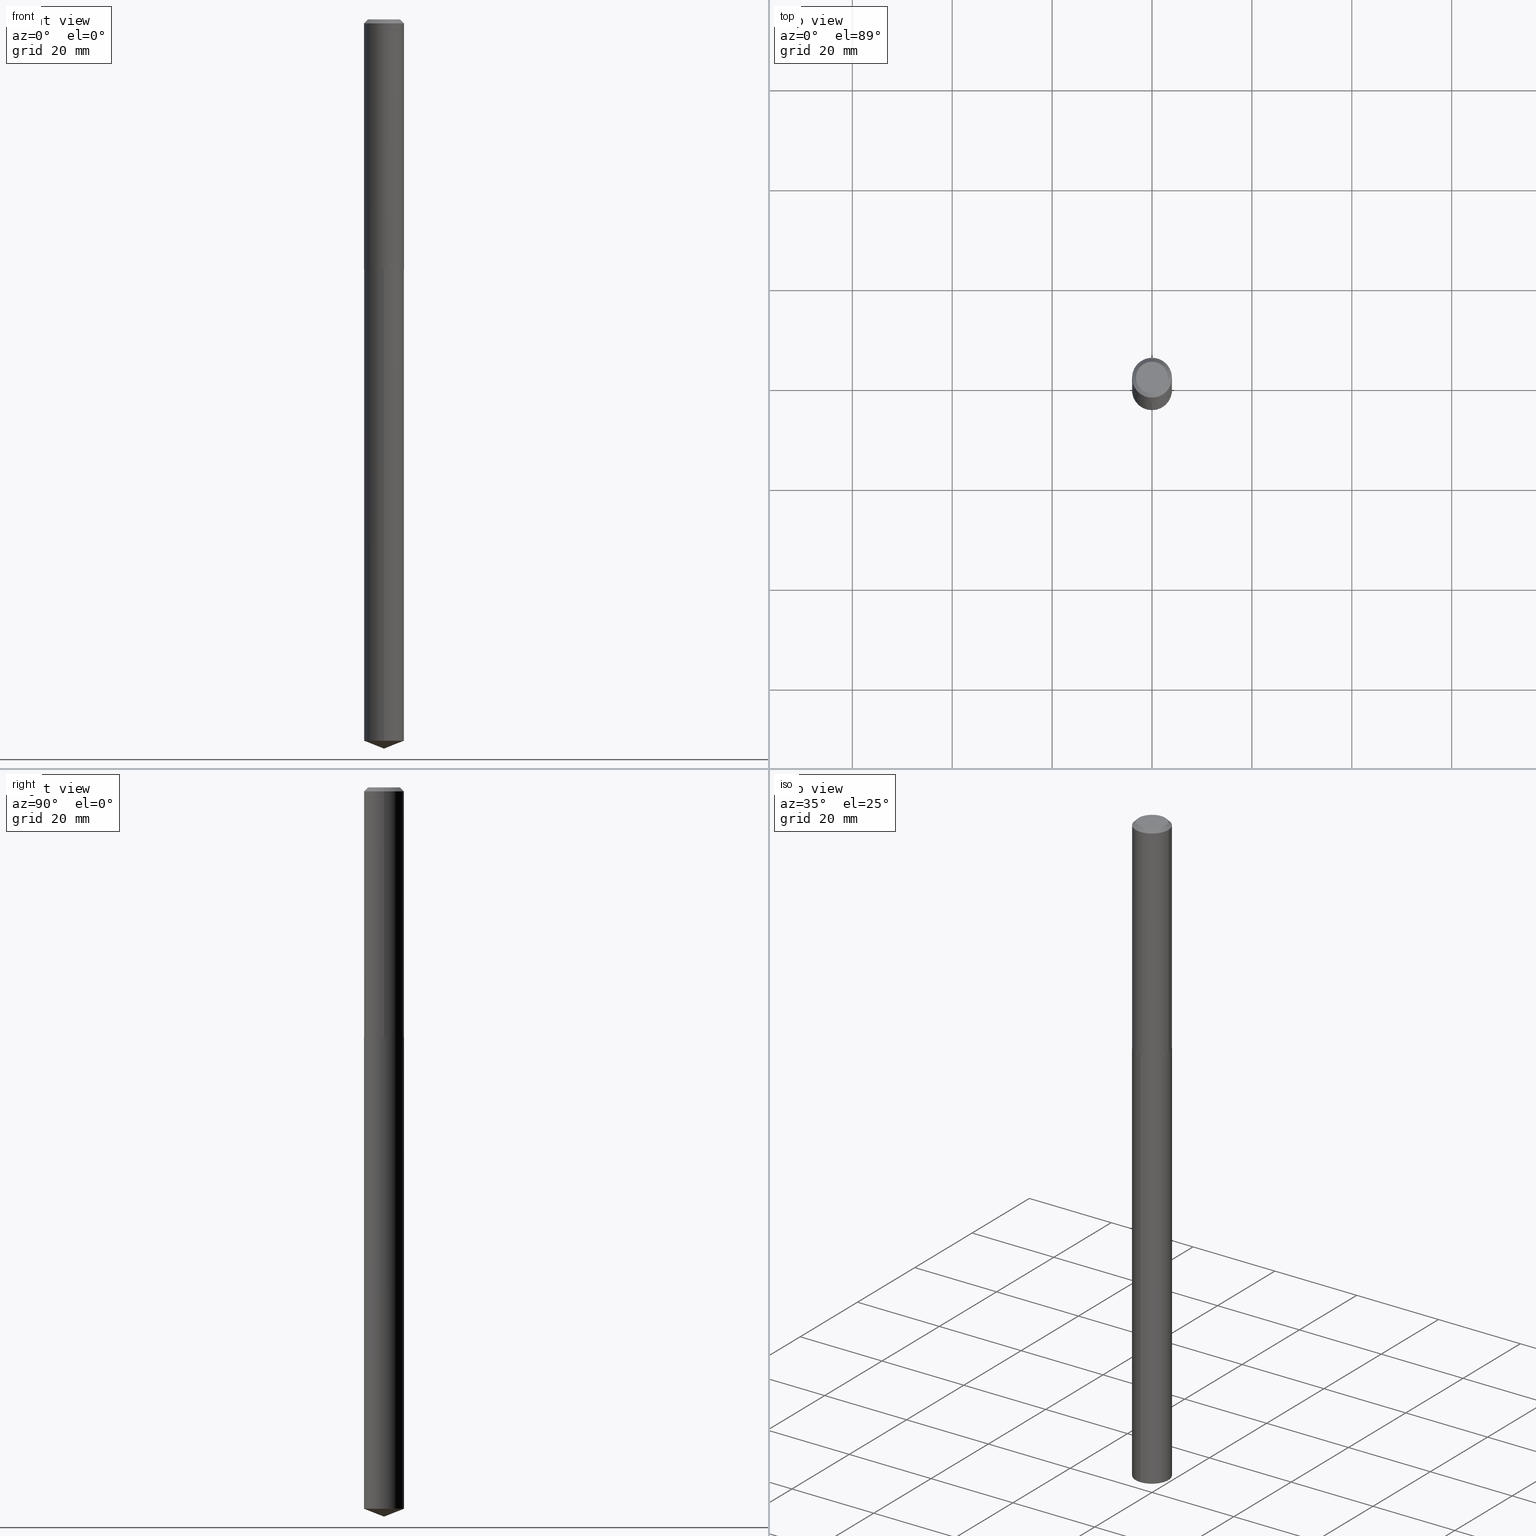
[diagram: canonical four-view strip — front | top / right | iso, engineering-drawing reading convention]
A machine part, canonical four-view strip (front | top / right | iso — engineering-drawing reading convention). The complete STEP part file that produces these views, byte-faithful:
ISO-10303-21;
HEADER;
FILE_DESCRIPTION (( 'STEP AP203' ),
    '1' );
FILE_NAME ('66759.STEP',
    '2024-04-23T12:51:38',
    ( '' ),
    ( '' ),
    'SwSTEP 2.0',
    'SolidWorks 2023',
    '' );
FILE_SCHEMA (( 'CONFIG_CONTROL_DESIGN' ));
ENDSEC;

DATA;
#1 = DATE_AND_TIME ( #185, #293 ) ;
#2 = LINE ( 'NONE', #123, #85 ) ;
#3 = PERSON_AND_ORGANIZATION ( #216, #11 ) ;
#4 = CIRCLE ( 'NONE', #220, 0.1262499999999999734 ) ;
#5 = SECURITY_CLASSIFICATION ( '', '', #346 ) ;
#6 = EDGE_CURVE ( 'NONE', #143, #141, #40, .T. ) ;
#7 = PERSON_AND_ORGANIZATION_ROLE ( 'creator' ) ;
#8 = EDGE_CURVE ( 'NONE', #266, #303, #118, .T. ) ;
#9 = AXIS2_PLACEMENT_3D ( 'NONE', #378, #297, #46 ) ;
#10 = LENGTH_MEASURE_WITH_UNIT ( LENGTH_MEASURE( 0.02539999999999999897 ), #304 );
#11 = ORGANIZATION ( 'UNSPECIFIED', 'UNSPECIFIED', '' ) ;
#12 = CARTESIAN_POINT ( 'NONE',  ( -5.899826025441371921E-47, 8.423387948417036461E-33, 2.412554194320285406E-18 ) ) ;
#13 = DIRECTION ( 'NONE',  ( -1.000000000000000000, 6.982962677686265922E-15, -4.876176775795935793E-29 ) ) ;
#14 = PERSON_AND_ORGANIZATION ( #216, #11 ) ;
#15 = AXIS2_PLACEMENT_3D ( 'NONE', #277, #126, #245 ) ;
#16 = ORIENTED_EDGE ( 'NONE', *, *, #340, .F. ) ;
#17 = ORIENTED_EDGE ( 'NONE', *, *, #252, .T. ) ;
#18 = DIRECTION ( 'NONE',  ( -6.982962677686265922E-15, -1.000000000000000000, 3.498627837350040510E-15 ) ) ;
#19 = EDGE_CURVE ( 'NONE', #76, #291, #131, .T. ) ;
#20 = VERTEX_POINT ( 'NONE', #272 ) ;
#21 = CIRCLE ( 'NONE', #99, 0.1575000000000002232 ) ;
#22 = EDGE_LOOP ( 'NONE', ( #24, #17 ) ) ;
#23 = ORIENTED_EDGE ( 'NONE', *, *, #319, .F. ) ;
#24 = ORIENTED_EDGE ( 'NONE', *, *, #149, .T. ) ;
#25 = EDGE_CURVE ( 'NONE', #291, #76, #374, .T. ) ;
#26 = DIRECTION ( 'NONE',  ( 1.000000000000000000, -6.982962677686265133E-15, 0.000000000000000000 ) ) ;
#27 = CLOSED_SHELL ( 'NONE', ( #89, #190, #273, #261, #150 ) ) ;
#28 = AXIS2_PLACEMENT_3D ( 'NONE', #160, #101, #130 ) ;
#29 = CYLINDRICAL_SURFACE ( 'NONE', #155, 0.1575000000000000844 ) ;
#30 = DIRECTION ( 'NONE',  ( 1.000000000000000000, -6.982962677686267499E-15, 4.876176775795936353E-29 ) ) ;
#31 = ADVANCED_FACE ( 'NONE', ( #87 ), #274, .F. ) ;
#32 = CARTESIAN_POINT ( 'NONE',  ( -1.099816621735447457E-15, -0.1575000000000197631, -5.685959100090645535 ) ) ;
#33 = PERSON_AND_ORGANIZATION ( #216, #11 ) ;
#34 = DIRECTION ( 'NONE',  ( -6.982962677686264344E-15, -1.000000000000000000, 3.469013325287953293E-15 ) ) ;
#35 = DIRECTION ( 'NONE',  ( -0.7071067811868855246, 7.493145998871575317E-15, 0.7071067811862095098 ) ) ;
#36 = DATE_AND_TIME ( #98, #287 ) ;
#37 = CC_DESIGN_DATE_AND_TIME_ASSIGNMENT ( #337, #370, ( #62 ) ) ;
#38 = CARTESIAN_POINT ( 'NONE',  ( 7.642090019328607917E-31, -1.091087918388491006E-16, -0.03125000000000022898 ) ) ;
#39 = DIRECTION ( 'NONE',  ( -2.445255354796806931E-29, 3.491787013380132143E-15, 1.000000000000000000 ) ) ;
#40 = CIRCLE ( 'NONE', #191, 0.1575000000000002232 ) ;
#41 = CALENDAR_DATE ( 2024, 23, 4 ) ;
#42 = PLANE ( 'NONE',  #267 ) ;
#43 = CARTESIAN_POINT ( 'NONE',  ( -1.179965205088274384E-46, 1.684677589683407292E-32, 4.825108388640570813E-18 ) ) ;
#44 = DIRECTION ( 'NONE',  ( 1.000000000000000000, -6.982962677686267499E-15, 4.876176775795936353E-29 ) ) ;
#45 = ORIENTED_EDGE ( 'NONE', *, *, #77, .F. ) ;
#46 = DIRECTION ( 'NONE',  ( -6.982962677686264344E-15, -1.000000000000000000, 3.469013325287953293E-15 ) ) ;
#47 = LOCAL_TIME ( 8, 51, 38.00000000000000000, #248 ) ;
#48 = ORIENTED_EDGE ( 'NONE', *, *, #25, .T. ) ;
#49 = APPLICATION_PROTOCOL_DEFINITION ( 'international standard', 'config_control_design', 1994, #321 ) ;
#50 = ORIENTED_EDGE ( 'NONE', *, *, #340, .T. ) ;
#51 = ORIENTED_EDGE ( 'NONE', *, *, #168, .F. ) ;
#52 = CARTESIAN_POINT ( 'NONE',  ( 4.814149891856057817E-29, -6.873330163646613641E-15, -1.968599999999999239 ) ) ;
#53 = AXIS2_PLACEMENT_3D ( 'NONE', #256, #72, #218 ) ;
#54 = EDGE_LOOP ( 'NONE', ( #148, #302, #145 ) ) ;
#55 = FACE_OUTER_BOUND ( 'NONE', #177, .T. ) ;
#56 = CARTESIAN_POINT ( 'NONE',  ( 4.812927157452967257E-29, -6.871584422977194504E-15, -1.968099999999999961 ) ) ;
#57 = DIRECTION ( 'NONE',  ( -6.982962677686264344E-15, -1.000000000000000000, 3.469013325287953293E-15 ) ) ;
#58 = COORDINATED_UNIVERSAL_TIME_OFFSET ( 5, 0, .BEHIND. ) ;
#59 = CONICAL_SURFACE ( 'NONE', #79, 0.1575000000000000011, 0.7853981633974447263 ) ;
#60 = CARTESIAN_POINT ( 'NONE',  ( 4.812927157452967257E-29, -6.871584422977194504E-15, -1.968099999999999961 ) ) ;
#61 = APPROVAL_PERSON_ORGANIZATION ( #373, #201, #154 ) ;
#62 = PRODUCT_DEFINITION ( 'UNKNOWN', '', #237, #328 ) ;
#63 = DIRECTION ( 'NONE',  ( 2.445468806185136597E-29, -3.491481338843145583E-15, -1.000000000000000000 ) ) ;
#64 = CARTESIAN_POINT ( 'NONE',  ( 4.812927157452967257E-29, -6.871584422977194504E-15, -1.968099999999999961 ) ) ;
#65 = DATE_AND_TIME ( #246, #47 ) ;
#66 = AXIS2_PLACEMENT_3D ( 'NONE', #103, #289, #18 ) ;
#67 = CIRCLE ( 'NONE', #28, 0.1575000000000000011 ) ;
#68 = SHAPE_DEFINITION_REPRESENTATION ( #107, #167 ) ;
#69 = VECTOR ( 'NONE', #322, 39.37007874015748143 ) ;
#70 = APPROVAL_ROLE ( '' ) ;
#71 = AXIS2_PLACEMENT_3D ( 'NONE', #184, #208, #30 ) ;
#72 = DIRECTION ( 'NONE',  ( -2.445468806185136597E-29, 3.491481338843145583E-15, 1.000000000000000000 ) ) ;
#73 = VERTEX_POINT ( 'NONE', #209 ) ;
#74 = DIRECTION ( 'NONE',  ( 2.438088387897960049E-29, -3.491481338843145188E-15, -1.000000000000000000 ) ) ;
#75 = EDGE_CURVE ( 'NONE', #80, #143, #88, .T. ) ;
#76 = VERTEX_POINT ( 'NONE', #313 ) ;
#77 = EDGE_CURVE ( 'NONE', #141, #143, #21, .T. ) ;
#78 = CARTESIAN_POINT ( 'NONE',  ( -1.179965205088274384E-46, 1.684677589683407292E-32, 4.825108388640570813E-18 ) ) ;
#79 = AXIS2_PLACEMENT_3D ( 'NONE', #342, #278, #159 ) ;
#80 = VERTEX_POINT ( 'NONE', #341 ) ;
#81 = DIRECTION ( 'NONE',  ( 2.445255354796806650E-29, -3.491787013380132143E-15, -1.000000000000000000 ) ) ;
#82 = ORIENTED_EDGE ( 'NONE', *, *, #19, .T. ) ;
#83 = ORIENTED_EDGE ( 'NONE', *, *, #25, .F. ) ;
#84 = ORIENTED_EDGE ( 'NONE', *, *, #252, .F. ) ;
#85 = VECTOR ( 'NONE', #317, 39.37007874015748143 ) ;
#86 = DIRECTION ( 'NONE',  ( 1.000000000000000000, -6.982962677686265922E-15, 0.000000000000000000 ) ) ;
#87 = FACE_OUTER_BOUND ( 'NONE', #116, .T. ) ;
#88 = LINE ( 'NONE', #338, #172 ) ;
#89 = ADVANCED_FACE ( 'NONE', ( #239 ), #369, .T. ) ;
#90 = PERSON_AND_ORGANIZATION_ROLE ( 'classification_officer' ) ;
#91 = CIRCLE ( 'NONE', #105, 0.1570000000000003892 ) ;
#92 = VECTOR ( 'NONE', #360, 39.37007874015748143 ) ;
#93 = DIRECTION ( 'NONE',  ( -2.445255354796806931E-29, 3.491787013380132143E-15, 1.000000000000000000 ) ) ;
#94 = VECTOR ( 'NONE', #93, 39.37007874015748143 ) ;
#95 = DIRECTION ( 'NONE',  ( -2.438088387897960049E-29, 3.491481338843145188E-15, 1.000000000000000000 ) ) ;
#96 = DIRECTION ( 'NONE',  ( -1.000000000000000000, 6.982962677686265922E-15, 0.000000000000000000 ) ) ;
#97 = CC_DESIGN_PERSON_AND_ORGANIZATION_ASSIGNMENT ( #3, #243, ( #237 ) ) ;
#98 = CALENDAR_DATE ( 2024, 23, 4 ) ;
#99 = AXIS2_PLACEMENT_3D ( 'NONE', #56, #151, #26 ) ;
#100 = CONICAL_SURFACE ( 'NONE', #387, 0.1575000000000000011, 0.7853981633974447263 ) ;
#101 = DIRECTION ( 'NONE',  ( -2.445255354796806931E-29, 3.491787013380132143E-15, 1.000000000000000000 ) ) ;
#102 = ADVANCED_FACE ( 'NONE', ( #179 ), #29, .T. ) ;
#103 = CARTESIAN_POINT ( 'NONE',  ( -8.221414787836689719E-28, 1.174017396586196474E-13, 33.62207874015748388 ) ) ;
#104 = DIRECTION ( 'NONE',  ( -2.445468806185136597E-29, 3.491481338843145583E-15, 1.000000000000000000 ) ) ;
#105 = AXIS2_PLACEMENT_3D ( 'NONE', #52, #334, #86 ) ;
#106 = AXIS2_PLACEMENT_3D ( 'NONE', #38, #352, #318 ) ;
#107 = PRODUCT_DEFINITION_SHAPE ( 'NONE', 'NONE',  #62 ) ;
#108 = ORIENTED_EDGE ( 'NONE', *, *, #6, .F. ) ;
#109 = CARTESIAN_POINT ( 'NONE',  ( -0.1575000000000000844, 1.119104808822158392E-15, -7.747322767151481189E-30 ) ) ;
#110 = APPROVAL_STATUS ( 'not_yet_approved' ) ;
#111 = ORIENTED_EDGE ( 'NONE', *, *, #242, .T. ) ;
#112 = VERTEX_POINT ( 'NONE', #316 ) ;
#113 = CARTESIAN_POINT ( 'NONE',  ( 1.405532777937204643E-28, -2.007079175290900127E-14, -5.748000000000000220 ) ) ;
#114 = VECTOR ( 'NONE', #137, 39.37007874015748143 ) ;
#115 = VERTEX_POINT ( 'NONE', #215 ) ;
#116 = EDGE_LOOP ( 'NONE', ( #388, #332 ) ) ;
#117 = AXIS2_PLACEMENT_3D ( 'NONE', #372, #95, #205 ) ;
#118 = LINE ( 'NONE', #343, #249 ) ;
#119 = ADVANCED_FACE ( 'NONE', ( #124 ), #59, .T. ) ;
#120 = DIRECTION ( 'NONE',  ( -6.982962677686264344E-15, -1.000000000000000000, 6.938026650575906587E-15 ) ) ;
#121 = DIRECTION ( 'NONE',  ( -2.445255354796806931E-29, 3.491787013380132143E-15, 1.000000000000000000 ) ) ;
#122 = CARTESIAN_POINT ( 'NONE',  ( 4.814149891856059498E-29, -6.873330163646616008E-15, -1.968599999999999905 ) ) ;
#123 = CARTESIAN_POINT ( 'NONE',  ( 1.405617554950123456E-28, -2.006958825112197784E-14, -5.748000000000000220 ) ) ;
#124 = FACE_OUTER_BOUND ( 'NONE', #390, .T. ) ;
#125 = DIRECTION ( 'NONE',  ( 1.000000000000000000, -6.982962677686265133E-15, 0.000000000000000000 ) ) ;
#126 = DIRECTION ( 'NONE',  ( -2.445468806185136597E-29, 3.491481338843145583E-15, 1.000000000000000000 ) ) ;
#127 = APPROVAL_ROLE ( '' ) ;
#128 = CONICAL_SURFACE ( 'NONE', #188, 0.1575000000000002232, 0.7853981633979263410 ) ;
#129 = EDGE_CURVE ( 'NONE', #20, #141, #210, .T. ) ;
#130 = DIRECTION ( 'NONE',  ( -6.982962677686264344E-15, -1.000000000000000000, 3.469013325287953293E-15 ) ) ;
#131 = CIRCLE ( 'NONE', #335, 0.1575000000000000011 ) ;
#132 = PERSON_AND_ORGANIZATION ( #216, #11 ) ;
#133 =( CONVERSION_BASED_UNIT ( 'INCH', #10 ) LENGTH_UNIT ( ) NAMED_UNIT ( #296 ) );
#134 = CC_DESIGN_PERSON_AND_ORGANIZATION_ASSIGNMENT ( #386, #240, ( #62 ) ) ;
#135 = ADVANCED_FACE ( 'NONE', ( #288 ), #200, .F. ) ;
#136 = CARTESIAN_POINT ( 'NONE',  ( 4.814149891856059498E-29, -6.873330163646616008E-15, -1.968599999999999905 ) ) ;
#137 = DIRECTION ( 'NONE',  ( -2.445255354796806931E-29, 3.491787013380132143E-15, 1.000000000000000000 ) ) ;
#138 = CARTESIAN_POINT ( 'NONE',  ( 0.1575000000000000011, -1.189637226487865274E-15, -0.03125000000000022898 ) ) ;
#139 = AXIS2_PLACEMENT_3D ( 'NONE', #307, #152, #120 ) ;
#140 = EDGE_CURVE ( 'NONE', #112, #356, #187, .T. ) ;
#141 = VERTEX_POINT ( 'NONE', #171 ) ;
#142 = UNCERTAINTY_MEASURE_WITH_UNIT (LENGTH_MEASURE( 1.000000000000000082E-05 ), #133, 'distance_accuracy_value', 'NONE');
#143 = VERTEX_POINT ( 'NONE', #192 ) ;
#144 = ORIENTED_EDGE ( 'NONE', *, *, #186, .T. ) ;
#145 = ORIENTED_EDGE ( 'NONE', *, *, #19, .F. ) ;
#146 = ORIENTED_EDGE ( 'NONE', *, *, #129, .F. ) ;
#147 = MANIFOLD_SOLID_BREP ( 'Body-Move/Copy2[1]', #27 ) ;
#148 = ORIENTED_EDGE ( 'NONE', *, *, #279, .F. ) ;
#149 = EDGE_CURVE ( 'NONE', #266, #364, #4, .T. ) ;
#150 = ADVANCED_FACE ( 'NONE', ( #382 ), #42, .F. ) ;
#151 = DIRECTION ( 'NONE',  ( -2.445468806185136597E-29, 3.491481338843145583E-15, 1.000000000000000000 ) ) ;
#152 = DIRECTION ( 'NONE',  ( -2.445255354796806931E-29, 3.491787013380132143E-15, 1.000000000000000000 ) ) ;
#153 = CARTESIAN_POINT ( 'NONE',  ( 0.1262499999999999734, -1.027887549353260543E-15, 4.825108388647246856E-18 ) ) ;
#154 = APPROVAL_ROLE ( '' ) ;
#155 = AXIS2_PLACEMENT_3D ( 'NONE', #339, #217, #44 ) ;
#156 = CARTESIAN_POINT ( 'NONE',  ( -0.1575000000000000011, -2.371241798585862621E-15, -0.03125000000000022898 ) ) ;
#157 = LOCAL_TIME ( 8, 51, 38.00000000000000000, #336 ) ;
#158 = LINE ( 'NONE', #345, #94 ) ;
#159 = DIRECTION ( 'NONE',  ( -1.000000000000000000, 6.982962677686265922E-15, 0.000000000000000000 ) ) ;
#160 = CARTESIAN_POINT ( 'NONE',  ( 4.814149891856059498E-29, -6.873330163646616008E-15, -1.968599999999999905 ) ) ;
#161 = FACE_OUTER_BOUND ( 'NONE', #54, .T. ) ;
#162 = CC_DESIGN_PERSON_AND_ORGANIZATION_ASSIGNMENT ( #14, #258, ( #227 ) ) ;
#163 = CONICAL_SURFACE ( 'NONE', #268, 0.1575000000000002232, 0.7853981633979263410 ) ;
#164 = CIRCLE ( 'NONE', #106, 0.1575000000000000011 ) ;
#165 = CARTESIAN_POINT ( 'NONE',  ( 0.000000000000000000, 0.000000000000000000, 0.000000000000000000 ) ) ;
#166 = LINE ( 'NONE', #113, #384 ) ;
#167 = ADVANCED_BREP_SHAPE_REPRESENTATION ( '66759', ( #147, #286, #271 ), #180 ) ;
#168 = EDGE_CURVE ( 'NONE', #76, #356, #253, .T. ) ;
#169 = LINE ( 'NONE', #138, #92 ) ;
#170 = EDGE_LOOP ( 'NONE', ( #51, #82, #295, #16 ) ) ;
#171 = CARTESIAN_POINT ( 'NONE',  ( 0.1575000000000002232, -7.971401044712782773E-15, -1.968099999999999961 ) ) ;
#172 = VECTOR ( 'NONE', #35, 39.37007874015748143 ) ;
#173 = ORIENTED_EDGE ( 'NONE', *, *, #8, .F. ) ;
#174 = DIRECTION ( 'NONE',  ( -2.445468806185136597E-29, 3.491481338843145583E-15, 1.000000000000000000 ) ) ;
#175 = EDGE_LOOP ( 'NONE', ( #48, #379, #199, #202 ) ) ;
#176 = APPROVAL ( #110, 'UNSPECIFIED' ) ;
#177 = EDGE_LOOP ( 'NONE', ( #235, #111, #23, #385 ) ) ;
#178 = ORIENTED_EDGE ( 'NONE', *, *, #75, .T. ) ;
#179 = FACE_OUTER_BOUND ( 'NONE', #263, .T. ) ;
#180 =( GEOMETRIC_REPRESENTATION_CONTEXT ( 3 ) GLOBAL_UNCERTAINTY_ASSIGNED_CONTEXT ( ( #142 ) ) GLOBAL_UNIT_ASSIGNED_CONTEXT ( ( #133, #353, #193 ) ) REPRESENTATION_CONTEXT ( 'NONE', 'WORKASPACE' ) );
#181 = DATE_TIME_ROLE ( 'classification_date' ) ;
#182 = CARTESIAN_POINT ( 'NONE',  ( -0.1262499999999999734, 9.361534339773144209E-16, 4.825108388634215244E-18 ) ) ;
#183 = DIRECTION ( 'NONE',  ( -2.445255354796806931E-29, 3.491787013380132143E-15, 1.000000000000000000 ) ) ;
#184 = CARTESIAN_POINT ( 'NONE',  ( 0.000000000000000000, 0.000000000000000000, 0.000000000000000000 ) ) ;
#185 = CALENDAR_DATE ( 2024, 23, 4 ) ;
#186 = EDGE_CURVE ( 'NONE', #141, #115, #198, .T. ) ;
#187 = CIRCLE ( 'NONE', #9, 0.1575000000000000011 ) ;
#188 = AXIS2_PLACEMENT_3D ( 'NONE', #60, #309, #276 ) ;
#189 = EDGE_CURVE ( 'NONE', #73, #291, #166, .T. ) ;
#190 = ADVANCED_FACE ( 'NONE', ( #331 ), #236, .T. ) ;
#191 = AXIS2_PLACEMENT_3D ( 'NONE', #64, #368, #125 ) ;
#192 = CARTESIAN_POINT ( 'NONE',  ( -0.1575000000000002232, -5.752479614155035323E-15, -1.968099999999999961 ) ) ;
#193 =( NAMED_UNIT ( * ) SI_UNIT ( $, .STERADIAN. ) SOLID_ANGLE_UNIT ( ) );
#194 = EDGE_CURVE ( 'NONE', #80, #20, #207, .T. ) ;
#195 = DIRECTION ( 'NONE',  ( -2.445468806185136877E-29, 3.491481338843145188E-15, 1.000000000000000000 ) ) ;
#196 = ORIENTED_EDGE ( 'NONE', *, *, #366, .T. ) ;
#197 = ORIENTED_EDGE ( 'NONE', *, *, #8, .T. ) ;
#198 = LINE ( 'NONE', #294, #232 ) ;
#199 = ORIENTED_EDGE ( 'NONE', *, *, #140, .F. ) ;
#200 = PLANE ( 'NONE',  #300 ) ;
#201 = APPROVAL ( #211, 'UNSPECIFIED' ) ;
#202 = ORIENTED_EDGE ( 'NONE', *, *, #262, .F. ) ;
#203 = EDGE_LOOP ( 'NONE', ( #333, #325, #83 ) ) ;
#204 = AXIS2_PLACEMENT_3D ( 'NONE', #122, #206, #57 ) ;
#205 = DIRECTION ( 'NONE',  ( 1.000000000000000000, -6.982962677686265922E-15, 4.876176775795935793E-29 ) ) ;
#206 = DIRECTION ( 'NONE',  ( -2.445255354796806931E-29, 3.491787013380132143E-15, 1.000000000000000000 ) ) ;
#207 = CIRCLE ( 'NONE', #53, 0.1570000000000003892 ) ;
#208 = DIRECTION ( 'NONE',  ( -2.445468806185136597E-29, 3.491481338843145583E-15, 1.000000000000000000 ) ) ;
#209 = CARTESIAN_POINT ( 'NONE',  ( 1.405532777937204643E-28, -2.007079175290900127E-14, -5.748000000000000220 ) ) ;
#210 = LINE ( 'NONE', #290, #69 ) ;
#211 = APPROVAL_STATUS ( 'not_yet_approved' ) ;
#212 = ADVANCED_FACE ( 'NONE', ( #222 ), #163, .T. ) ;
#213 = CONICAL_SURFACE ( 'NONE', #362, 99.94676754583893796, 1.195550537616115960 ) ;
#214 = APPROVAL_DATE_TIME ( #350, #176 ) ;
#215 = CARTESIAN_POINT ( 'NONE',  ( 0.1575000000000000011, -1.208925413574435989E-15, -0.03125000000000022898 ) ) ;
#216 = PERSON ( 'UNSPECIFIED', 'UNSPECIFIED', 'UNSPECIFIED', ('UNSPECIFIED'), ('UNSPECIFIED'), ('UNSPECIFIED') ) ;
#217 = DIRECTION ( 'NONE',  ( -2.445468806185136597E-29, 3.491481338843145583E-15, 1.000000000000000000 ) ) ;
#218 = DIRECTION ( 'NONE',  ( 1.000000000000000000, -6.982962677686265922E-15, 0.000000000000000000 ) ) ;
#219 = DIRECTION ( 'NONE',  ( 1.000000000000000000, 0.000000000000000000, 0.000000000000000000 ) ) ;
#220 = AXIS2_PLACEMENT_3D ( 'NONE', #43, #104, #264 ) ;
#221 = CC_DESIGN_SECURITY_CLASSIFICATION ( #5, ( #237 ) ) ;
#222 = FACE_OUTER_BOUND ( 'NONE', #229, .T. ) ;
#223 = EDGE_LOOP ( 'NONE', ( #226, #361, #197, #196 ) ) ;
#224 = CARTESIAN_POINT ( 'NONE',  ( 4.812927157452967257E-29, -6.871584422977194504E-15, -1.968099999999999961 ) ) ;
#225 = COORDINATED_UNIVERSAL_TIME_OFFSET ( 5, 0, .BEHIND. ) ;
#226 = ORIENTED_EDGE ( 'NONE', *, *, #230, .F. ) ;
#227 = PRODUCT ( '66759', '66759', '', ( #323 ) ) ;
#228 = DIRECTION ( 'NONE',  ( -2.445468806185136597E-29, 3.491481338843145583E-15, 1.000000000000000000 ) ) ;
#229 = EDGE_LOOP ( 'NONE', ( #359, #178, #45, #146 ) ) ;
#230 = EDGE_CURVE ( 'NONE', #364, #115, #169, .T. ) ;
#231 = DIRECTION ( 'NONE',  ( 1.000000000000000000, -6.982962677686267499E-15, 4.876009584780190244E-29 ) ) ;
#232 = VECTOR ( 'NONE', #195, 39.37007874015748143 ) ;
#233 = CC_DESIGN_APPROVAL ( #375, ( #237 ) ) ;
#234 = ORIENTED_EDGE ( 'NONE', *, *, #230, .T. ) ;
#235 = ORIENTED_EDGE ( 'NONE', *, *, #77, .T. ) ;
#236 = CONICAL_SURFACE ( 'NONE', #66, 99.94676754583893796, 1.195550537616115960 ) ;
#237 = PRODUCT_DEFINITION_FORMATION_WITH_SPECIFIED_SOURCE ( 'ANY', '', #227, .NOT_KNOWN. ) ;
#238 = CARTESIAN_POINT ( 'NONE',  ( 1.390404213705535400E-28, -1.985355639341359418E-14, -5.685959100090646423 ) ) ;
#239 = FACE_OUTER_BOUND ( 'NONE', #175, .T. ) ;
#240 = PERSON_AND_ORGANIZATION_ROLE ( 'creator' ) ;
#241 = FACE_OUTER_BOUND ( 'NONE', #299, .T. ) ;
#242 = EDGE_CURVE ( 'NONE', #143, #303, #257, .T. ) ;
#243 = PERSON_AND_ORGANIZATION_ROLE ( 'design_supplier' ) ;
#244 = DIRECTION ( 'NONE',  ( -6.982962677686265922E-15, -1.000000000000000000, 3.498627837350040510E-15 ) ) ;
#245 = DIRECTION ( 'NONE',  ( 1.000000000000000000, -6.982962677686265922E-15, 0.000000000000000000 ) ) ;
#246 = CALENDAR_DATE ( 2024, 23, 4 ) ;
#247 = CYLINDRICAL_SURFACE ( 'NONE', #301, 0.1575000000000000011 ) ;
#248 = COORDINATED_UNIVERSAL_TIME_OFFSET ( 5, 0, .BEHIND. ) ;
#249 = VECTOR ( 'NONE', #305, 39.37007874015748143 ) ;
#250 = CARTESIAN_POINT ( 'NONE',  ( 1.119104808822297232E-15, 0.1574999999999931177, -1.968600000000000350 ) ) ;
#251 = APPROVAL_PERSON_ORGANIZATION ( #132, #375, #127 ) ;
#252 = EDGE_CURVE ( 'NONE', #364, #266, #292, .T. ) ;
#253 = LINE ( 'NONE', #380, #114 ) ;
#254 = DIRECTION ( 'NONE',  ( 0.000000000000000000, 0.000000000000000000, 1.000000000000000000 ) ) ;
#255 = EDGE_CURVE ( 'NONE', #20, #80, #91, .T. ) ;
#256 = CARTESIAN_POINT ( 'NONE',  ( 4.814149891856057817E-29, -6.873330163646613641E-15, -1.968599999999999239 ) ) ;
#257 = LINE ( 'NONE', #109, #270 ) ;
#258 = PERSON_AND_ORGANIZATION_ROLE ( 'design_owner' ) ;
#259 = ORIENTED_EDGE ( 'NONE', *, *, #319, .T. ) ;
#260 = ADVANCED_FACE ( 'NONE', ( #55 ), #351, .T. ) ;
#261 = ADVANCED_FACE ( 'NONE', ( #312 ), #247, .T. ) ;
#262 = EDGE_CURVE ( 'NONE', #291, #112, #158, .T. ) ;
#263 = EDGE_LOOP ( 'NONE', ( #298, #269, #144, #381 ) ) ;
#264 = DIRECTION ( 'NONE',  ( 1.000000000000000000, -6.982962677686267499E-15, 4.876009584780190244E-29 ) ) ;
#265 = APPLICATION_CONTEXT ( 'configuration controlled 3d designs of mechanical parts and assemblies' ) ;
#266 = VERTEX_POINT ( 'NONE', #182 ) ;
#267 = AXIS2_PLACEMENT_3D ( 'NONE', #136, #81, #354 ) ;
#268 = AXIS2_PLACEMENT_3D ( 'NONE', #224, #228, #329 ) ;
#269 = ORIENTED_EDGE ( 'NONE', *, *, #6, .T. ) ;
#270 = VECTOR ( 'NONE', #357, 39.37007874015748143 ) ;
#271 = AXIS2_PLACEMENT_3D ( 'NONE', #165, #254, #219 ) ;
#272 = CARTESIAN_POINT ( 'NONE',  ( 0.1570000000000003892, -7.969655304043360481E-15, -1.968599999999999239 ) ) ;
#273 = ADVANCED_FACE ( 'NONE', ( #161 ), #213, .T. ) ;
#274 = PLANE ( 'NONE',  #117 ) ;
#275 = ADVANCED_FACE ( 'NONE', ( #241 ), #128, .T. ) ;
#276 = DIRECTION ( 'NONE',  ( 1.000000000000000000, -6.982962677686265133E-15, 0.000000000000000000 ) ) ;
#277 = CARTESIAN_POINT ( 'NONE',  ( 7.642090019328607917E-31, -1.091087918388491006E-16, -0.03125000000000022898 ) ) ;
#278 = DIRECTION ( 'NONE',  ( 2.445468806185136597E-29, -3.491481338843145583E-15, -1.000000000000000000 ) ) ;
#279 = EDGE_CURVE ( 'NONE', #73, #76, #2, .T. ) ;
#280 = CLOSED_SHELL ( 'NONE', ( #119, #260, #212, #31, #275, #102, #348, #135 ) ) ;
#281 = LOCAL_TIME ( 8, 51, 38.00000000000000000, #225 ) ;
#282 = APPROVAL_DATE_TIME ( #36, #201 ) ;
#283 = PRODUCT_RELATED_PRODUCT_CATEGORY ( 'detail', '', ( #227 ) ) ;
#284 = CARTESIAN_POINT ( 'NONE',  ( 7.642090019328607917E-31, -1.091087918388491006E-16, -0.03125000000000022898 ) ) ;
#285 = APPROVAL_STATUS ( 'not_yet_approved' ) ;
#286 = MANIFOLD_SOLID_BREP ( 'Body-Move/Copy2[2]', #280 ) ;
#287 = LOCAL_TIME ( 8, 51, 38.00000000000000000, #314 ) ;
#288 = FACE_OUTER_BOUND ( 'NONE', #22, .T. ) ;
#289 = DIRECTION ( 'NONE',  ( -2.445255354796806931E-29, 3.491787013380132143E-15, 1.000000000000000000 ) ) ;
#290 = CARTESIAN_POINT ( 'NONE',  ( 0.1575000000000002232, -7.971401044712782773E-15, -1.968099999999999961 ) ) ;
#291 = VERTEX_POINT ( 'NONE', #32 ) ;
#292 = CIRCLE ( 'NONE', #349, 0.1262499999999999734 ) ;
#293 = LOCAL_TIME ( 8, 51, 38.00000000000000000, #58 ) ;
#294 = CARTESIAN_POINT ( 'NONE',  ( 0.1575000000000000844, -1.099816621735587677E-15, 7.679978421878603638E-30 ) ) ;
#295 = ORIENTED_EDGE ( 'NONE', *, *, #262, .T. ) ;
#296 = DIMENSIONAL_EXPONENTS ( 1.000000000000000000, 0.000000000000000000, 0.000000000000000000, 0.000000000000000000, 0.000000000000000000, 0.000000000000000000, 0.000000000000000000 ) ;
#297 = DIRECTION ( 'NONE',  ( -2.445255354796806931E-29, 3.491787013380132143E-15, 1.000000000000000000 ) ) ;
#298 = ORIENTED_EDGE ( 'NONE', *, *, #242, .F. ) ;
#299 = EDGE_LOOP ( 'NONE', ( #330, #326, #365, #108 ) ) ;
#300 = AXIS2_PLACEMENT_3D ( 'NONE', #12, #74, #13 ) ;
#301 = AXIS2_PLACEMENT_3D ( 'NONE', #347, #39, #34 ) ;
#302 = ORIENTED_EDGE ( 'NONE', *, *, #189, .T. ) ;
#303 = VERTEX_POINT ( 'NONE', #156 ) ;
#304 =( LENGTH_UNIT ( ) NAMED_UNIT ( * ) SI_UNIT ( $, .METRE. ) );
#305 = DIRECTION ( 'NONE',  ( -0.7071067811865450192, 2.468850131082230634E-15, -0.7071067811865500152 ) ) ;
#306 = CC_DESIGN_DATE_AND_TIME_ASSIGNMENT ( #1, #181, ( #5 ) ) ;
#307 = CARTESIAN_POINT ( 'NONE',  ( 1.390404213705535400E-28, -1.985355639341359418E-14, -5.685959100090646423 ) ) ;
#308 = APPROVAL_DATE_TIME ( #65, #375 ) ;
#309 = DIRECTION ( 'NONE',  ( -2.445468806185136597E-29, 3.491481338843145583E-15, 1.000000000000000000 ) ) ;
#310 = DIRECTION ( 'NONE',  ( -6.982962677686264344E-15, -1.000000000000000000, 6.938026650575906587E-15 ) ) ;
#311 = PERSON_AND_ORGANIZATION ( #216, #11 ) ;
#312 = FACE_OUTER_BOUND ( 'NONE', #170, .T. ) ;
#313 = CARTESIAN_POINT ( 'NONE',  ( 1.119104808822296246E-15, 0.1574999999999801281, -5.685959100090647311 ) ) ;
#314 = COORDINATED_UNIVERSAL_TIME_OFFSET ( 5, 0, .BEHIND. ) ;
#315 = CC_DESIGN_APPROVAL ( #176, ( #62 ) ) ;
#316 = CARTESIAN_POINT ( 'NONE',  ( -1.099816621735538768E-15, -0.1575000000000068567, -1.968599999999999239 ) ) ;
#317 = DIRECTION ( 'NONE',  ( 6.611014441532057911E-15, 0.9304175679820259059, 0.3665012267242938049 ) ) ;
#318 = DIRECTION ( 'NONE',  ( 1.000000000000000000, -6.982962677686265922E-15, 0.000000000000000000 ) ) ;
#319 = EDGE_CURVE ( 'NONE', #115, #303, #164, .T. ) ;
#320 = CIRCLE ( 'NONE', #15, 0.1575000000000000011 ) ;
#321 = APPLICATION_CONTEXT ( 'configuration controlled 3d designs of mechanical parts and assemblies' ) ;
#322 = DIRECTION ( 'NONE',  ( 0.7071067811868855246, -2.468850131085797074E-15, 0.7071067811862095098 ) ) ;
#323 = MECHANICAL_CONTEXT ( 'NONE', #265, 'mechanical' ) ;
#324 = DIRECTION ( 'NONE',  ( -6.497071151882111159E-15, -0.9304175679820232414, 0.3665012267243003552 ) ) ;
#325 = ORIENTED_EDGE ( 'NONE', *, *, #279, .T. ) ;
#326 = ORIENTED_EDGE ( 'NONE', *, *, #194, .T. ) ;
#327 = CC_DESIGN_APPROVAL ( #201, ( #5 ) ) ;
#328 = DESIGN_CONTEXT ( 'detailed design', #321, 'design' ) ;
#329 = DIRECTION ( 'NONE',  ( 1.000000000000000000, -6.982962677686265133E-15, 0.000000000000000000 ) ) ;
#330 = ORIENTED_EDGE ( 'NONE', *, *, #75, .F. ) ;
#331 = FACE_OUTER_BOUND ( 'NONE', #203, .T. ) ;
#332 = ORIENTED_EDGE ( 'NONE', *, *, #194, .F. ) ;
#333 = ORIENTED_EDGE ( 'NONE', *, *, #189, .F. ) ;
#334 = DIRECTION ( 'NONE',  ( -2.445468806185136597E-29, 3.491481338843145583E-15, 1.000000000000000000 ) ) ;
#335 = AXIS2_PLACEMENT_3D ( 'NONE', #238, #183, #310 ) ;
#336 = COORDINATED_UNIVERSAL_TIME_OFFSET ( 5, 0, .BEHIND. ) ;
#337 = DATE_AND_TIME ( #41, #157 ) ;
#338 = CARTESIAN_POINT ( 'NONE',  ( -0.1575000000000002232, -5.752479614155035323E-15, -1.968099999999999961 ) ) ;
#339 = CARTESIAN_POINT ( 'NONE',  ( 0.000000000000000000, 0.000000000000000000, 0.000000000000000000 ) ) ;
#340 = EDGE_CURVE ( 'NONE', #356, #112, #67, .T. ) ;
#341 = CARTESIAN_POINT ( 'NONE',  ( -0.1570000000000003892, -5.755128841329144947E-15, -1.968599999999999239 ) ) ;
#342 = CARTESIAN_POINT ( 'NONE',  ( 7.642090019328607917E-31, -1.091087918388491006E-16, -0.03125000000000022898 ) ) ;
#343 = CARTESIAN_POINT ( 'NONE',  ( -0.1575000000000000011, 9.907078298967379852E-16, -0.03125000000000022898 ) ) ;
#344 = FACE_OUTER_BOUND ( 'NONE', #223, .T. ) ;
#345 = CARTESIAN_POINT ( 'NONE',  ( -1.099816621735538768E-15, -0.1575000000000068567, -1.968599999999999239 ) ) ;
#346 = SECURITY_CLASSIFICATION_LEVEL ( 'unclassified' ) ;
#347 = CARTESIAN_POINT ( 'NONE',  ( 4.814149891856059498E-29, -6.873330163646616008E-15, -1.968599999999999905 ) ) ;
#348 = ADVANCED_FACE ( 'NONE', ( #344 ), #100, .T. ) ;
#349 = AXIS2_PLACEMENT_3D ( 'NONE', #78, #174, #231 ) ;
#350 = DATE_AND_TIME ( #358, #281 ) ;
#351 = CYLINDRICAL_SURFACE ( 'NONE', #71, 0.1575000000000000844 ) ;
#352 = DIRECTION ( 'NONE',  ( -2.445468806185136597E-29, 3.491481338843145583E-15, 1.000000000000000000 ) ) ;
#353 =( NAMED_UNIT ( * ) PLANE_ANGLE_UNIT ( ) SI_UNIT ( $, .RADIAN. ) );
#354 = DIRECTION ( 'NONE',  ( 6.982962677686265922E-15, 1.000000000000000000, -3.491787013380132143E-15 ) ) ;
#355 = CC_DESIGN_PERSON_AND_ORGANIZATION_ASSIGNMENT ( #311, #7, ( #237 ) ) ;
#356 = VERTEX_POINT ( 'NONE', #250 ) ;
#357 = DIRECTION ( 'NONE',  ( -2.445468806185136877E-29, 3.491481338843145188E-15, 1.000000000000000000 ) ) ;
#358 = CALENDAR_DATE ( 2024, 23, 4 ) ;
#359 = ORIENTED_EDGE ( 'NONE', *, *, #255, .T. ) ;
#360 = DIRECTION ( 'NONE',  ( 0.7071067811865450192, -7.319954787623246579E-15, -0.7071067811865500152 ) ) ;
#361 = ORIENTED_EDGE ( 'NONE', *, *, #149, .F. ) ;
#362 = AXIS2_PLACEMENT_3D ( 'NONE', #389, #121, #244 ) ;
#363 = PERSON_AND_ORGANIZATION ( #216, #11 ) ;
#364 = VERTEX_POINT ( 'NONE', #153 ) ;
#365 = ORIENTED_EDGE ( 'NONE', *, *, #129, .T. ) ;
#366 = EDGE_CURVE ( 'NONE', #303, #115, #320, .T. ) ;
#367 = CC_DESIGN_PERSON_AND_ORGANIZATION_ASSIGNMENT ( #33, #90, ( #5 ) ) ;
#368 = DIRECTION ( 'NONE',  ( -2.445468806185136597E-29, 3.491481338843145583E-15, 1.000000000000000000 ) ) ;
#369 = CYLINDRICAL_SURFACE ( 'NONE', #204, 0.1575000000000000011 ) ;
#370 = DATE_TIME_ROLE ( 'creation_date' ) ;
#371 = APPROVAL_PERSON_ORGANIZATION ( #363, #176, #70 ) ;
#372 = CARTESIAN_POINT ( 'NONE',  ( 4.814149891856058377E-29, -6.873330163646614430E-15, -1.968599999999999683 ) ) ;
#373 = PERSON_AND_ORGANIZATION ( #216, #11 ) ;
#374 = CIRCLE ( 'NONE', #139, 0.1575000000000000011 ) ;
#375 = APPROVAL ( #285, 'UNSPECIFIED' ) ;
#376 = APPLICATION_PROTOCOL_DEFINITION ( 'international standard', 'config_control_design', 1994, #265 ) ;
#377 = EDGE_LOOP ( 'NONE', ( #383, #50 ) ) ;
#378 = CARTESIAN_POINT ( 'NONE',  ( 4.814149891856059498E-29, -6.873330163646616008E-15, -1.968599999999999905 ) ) ;
#379 = ORIENTED_EDGE ( 'NONE', *, *, #168, .T. ) ;
#380 = CARTESIAN_POINT ( 'NONE',  ( 1.119104808822205527E-15, 0.1574999999999931177, -1.968600000000000350 ) ) ;
#381 = ORIENTED_EDGE ( 'NONE', *, *, #366, .F. ) ;
#382 = FACE_OUTER_BOUND ( 'NONE', #377, .T. ) ;
#383 = ORIENTED_EDGE ( 'NONE', *, *, #140, .T. ) ;
#384 = VECTOR ( 'NONE', #324, 39.37007874015748854 ) ;
#385 = ORIENTED_EDGE ( 'NONE', *, *, #186, .F. ) ;
#386 = PERSON_AND_ORGANIZATION ( #216, #11 ) ;
#387 = AXIS2_PLACEMENT_3D ( 'NONE', #284, #63, #96 ) ;
#388 = ORIENTED_EDGE ( 'NONE', *, *, #255, .F. ) ;
#389 = CARTESIAN_POINT ( 'NONE',  ( -8.221414787836689719E-28, 1.174017396586196474E-13, 33.62207874015748388 ) ) ;
#390 = EDGE_LOOP ( 'NONE', ( #84, #234, #259, #173 ) ) ;
ENDSEC;
END-ISO-10303-21;
